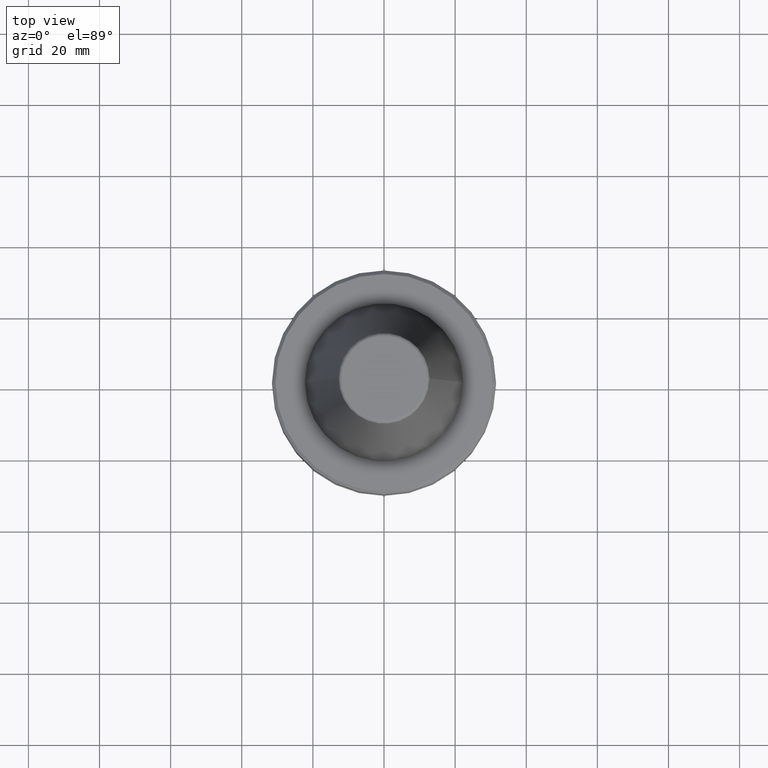
[diagram: clean part render]
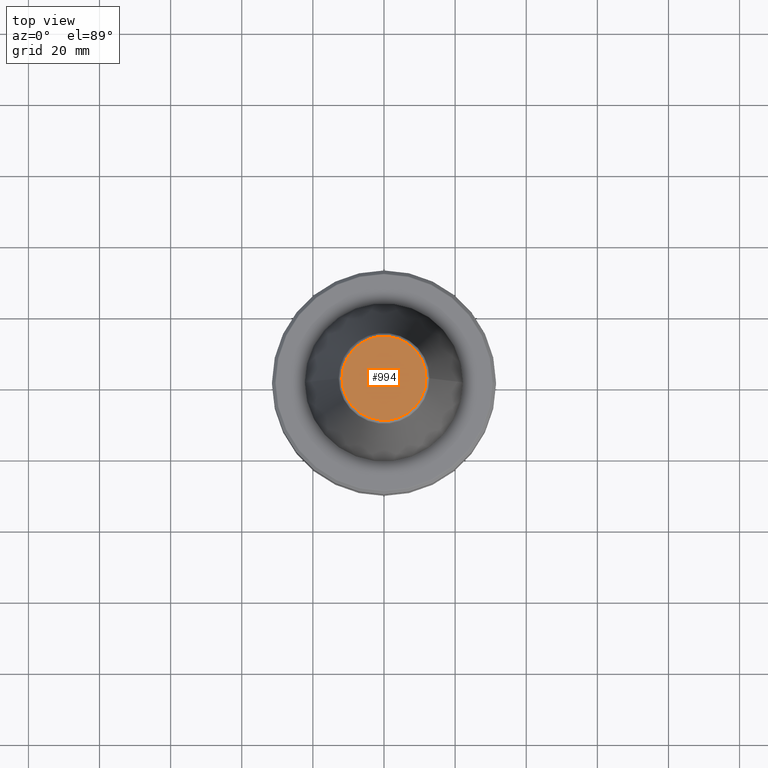
[diagram: same view with one face highlighted and labeled with its STEP entity id]
A machine part, top view. The second image highlights one B-rep face of the part: STEP entity #994.
In plain terms, the highlighted planar face has unit normal (0, -0, 1).
Its self-contained STEP definition (entity closure, byte-faithful):
#23 = DIRECTION ( 'NONE',  ( -0.0000000000000000000, -0.0000000000000000000, 1.000000000000000000 ) ) ;
#94 = DIRECTION ( 'NONE',  ( 1.000000000000000000, 0.0000000000000000000, 0.0000000000000000000 ) ) ;
#219 = DIRECTION ( 'NONE',  ( 1.000000000000000000, 0.0000000000000000000, 0.0000000000000000000 ) ) ;
#231 = EDGE_CURVE ( 'NONE', #595, #255, #597, .T. ) ;
#255 = VERTEX_POINT ( 'NONE', #312 ) ;
#262 = AXIS2_PLACEMENT_3D ( 'NONE', #577, #781, #884 ) ;
#312 = CARTESIAN_POINT ( 'NONE',  ( 11.82266672057007100, 0.0000000000000000000, 65.40000000000000600 ) ) ;
#319 = EDGE_LOOP ( 'NONE', ( #864, #445 ) ) ;
#424 = AXIS2_PLACEMENT_3D ( 'NONE', #809, #23, #219 ) ;
#445 = ORIENTED_EDGE ( 'NONE', *, *, #231, .T. ) ;
#577 = CARTESIAN_POINT ( 'NONE',  ( 0.0000000000000000000, 0.0000000000000000000, 65.40000000000000600 ) ) ;
#595 = VERTEX_POINT ( 'NONE', #658 ) ;
#597 = CIRCLE ( 'NONE', #424, 11.82266672057007100 ) ;
#638 = AXIS2_PLACEMENT_3D ( 'NONE', #1175, #1077, #94 ) ;
#658 = CARTESIAN_POINT ( 'NONE',  ( -11.82266672057007100, 1.508450503654657300E-015, 65.40000000000000600 ) ) ;
#781 = DIRECTION ( 'NONE',  ( 0.0000000000000000000, -0.0000000000000000000, 1.000000000000000000 ) ) ;
#809 = CARTESIAN_POINT ( 'NONE',  ( 0.0000000000000000000, 0.0000000000000000000, 65.40000000000000600 ) ) ;
#864 = ORIENTED_EDGE ( 'NONE', *, *, #1227, .T. ) ;
#884 = DIRECTION ( 'NONE',  ( 1.000000000000000000, 0.0000000000000000000, 0.0000000000000000000 ) ) ;
#942 = CIRCLE ( 'NONE', #638, 11.82266672057007100 ) ;
#994 = ADVANCED_FACE ( 'NONE', ( #1127 ), #1217, .T. ) ;
#1077 = DIRECTION ( 'NONE',  ( -0.0000000000000000000, -0.0000000000000000000, 1.000000000000000000 ) ) ;
#1127 = FACE_OUTER_BOUND ( 'NONE', #319, .T. ) ;
#1175 = CARTESIAN_POINT ( 'NONE',  ( 0.0000000000000000000, 0.0000000000000000000, 65.40000000000000600 ) ) ;
#1217 = PLANE ( 'NONE',  #262 ) ;
#1227 = EDGE_CURVE ( 'NONE', #255, #595, #942, .T. ) ;